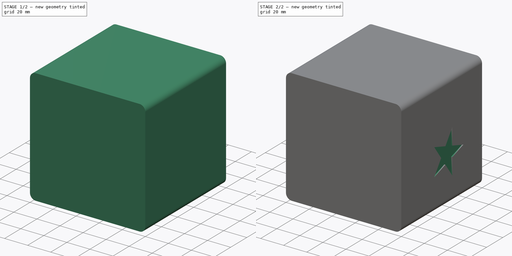
[diagram: build sequence overview — one tinted view per stage of 2, left to right]
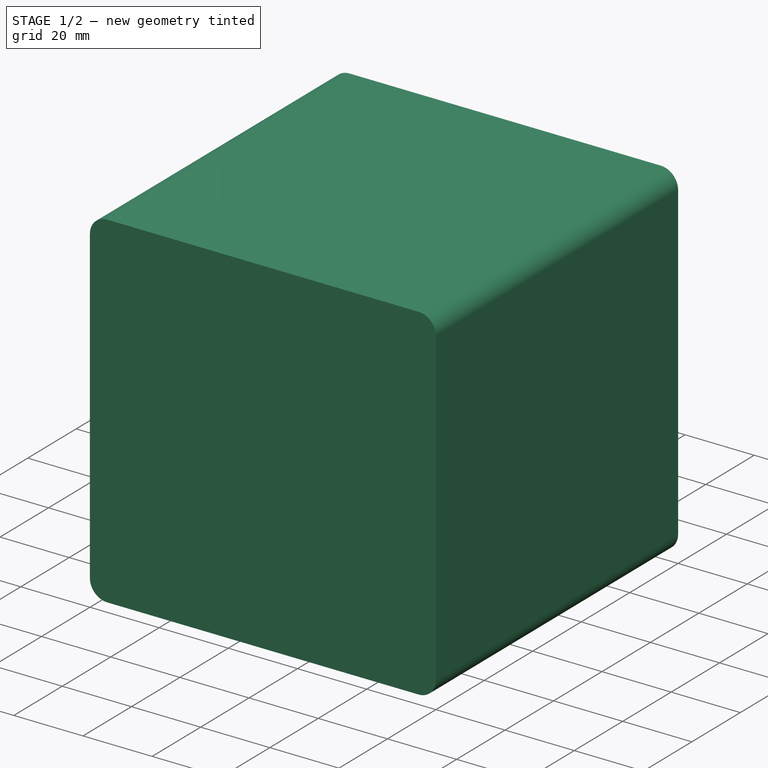
[diagram: stage 1 of 2 — iso view after this stage's code; geometry added in this stage tinted green]
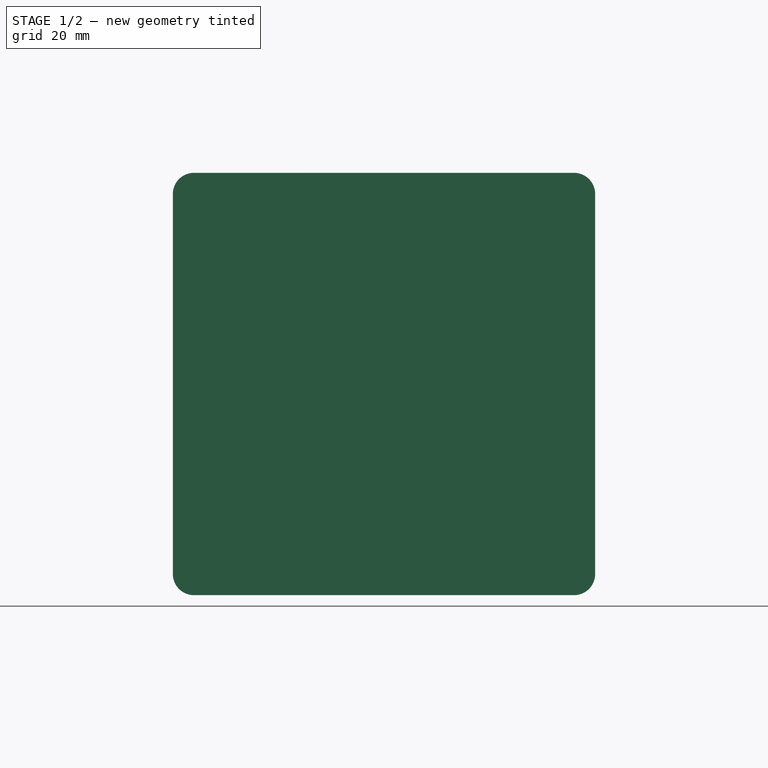
[diagram: stage 1 of 2 — front view after this stage's code; geometry added in this stage tinted green]
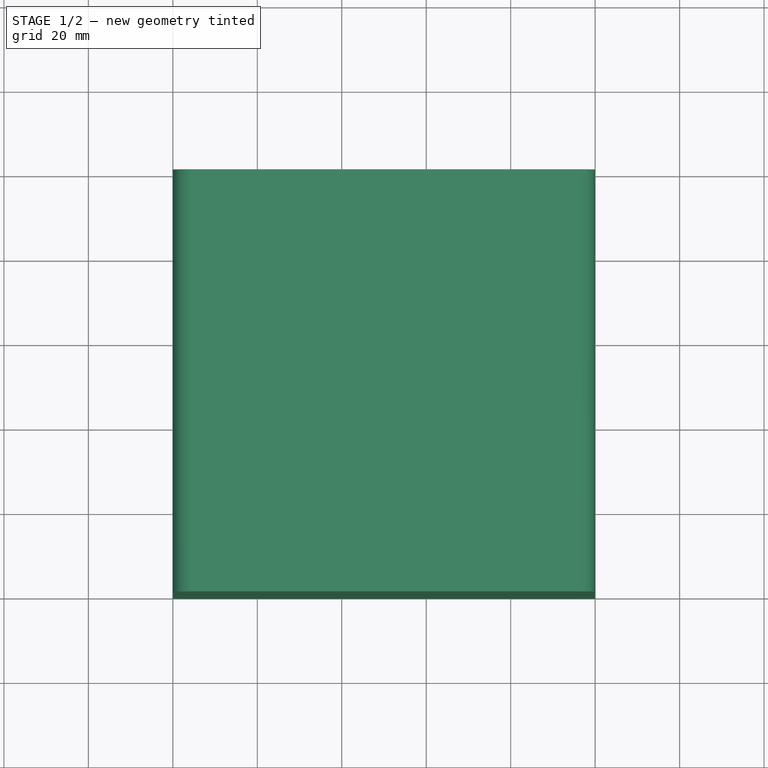
[diagram: stage 1 of 2 — top view after this stage's code; geometry added in this stage tinted green]
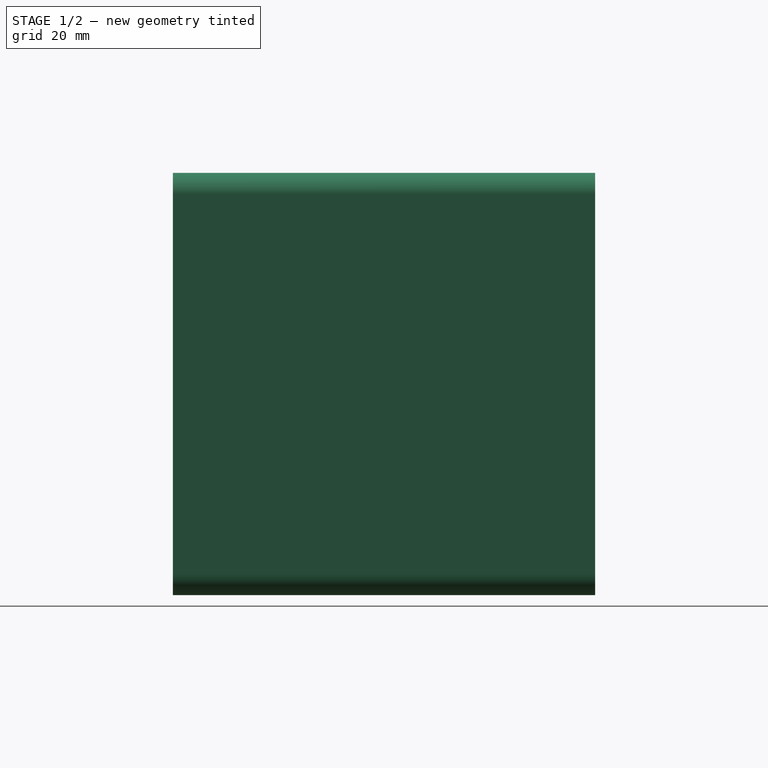
[diagram: stage 1 of 2 — right view after this stage's code; geometry added in this stage tinted green]
FCSTD DOCUMENT  (FreeCAD 0.16R4928 (Git))
Label: cajon-marcela
License: All rights reserved
LicenseURL: http://en.wikipedia.org/wiki/All_rights_reserved
objects: Sketcher::SketchObject×2, PartDesign::Pocket×2, Part::Box×1, PartDesign::Fillet×1
note: 8 computed .brp shape members not serialized (recipe doc carries the construction recipe); baked Part::Feature solids carry a one-line shape summary decoded from their .brp

FEATURE [Part::Box] Box  label="Cubo"
  Height = 100
  Length = 100
  Width = 100
FEATURE [PartDesign::Fillet] Fillet
  Base = -> Box [Edge6,Edge2,Edge8,Edge4]
  Radius = 5
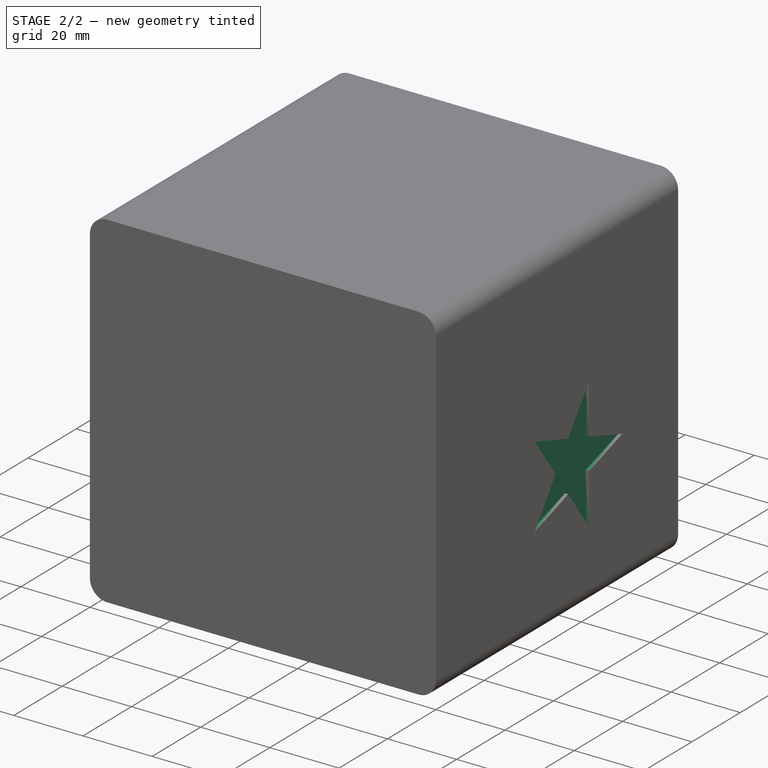
[diagram: stage 2 of 2 — iso view after this stage's code; geometry added in this stage tinted green]
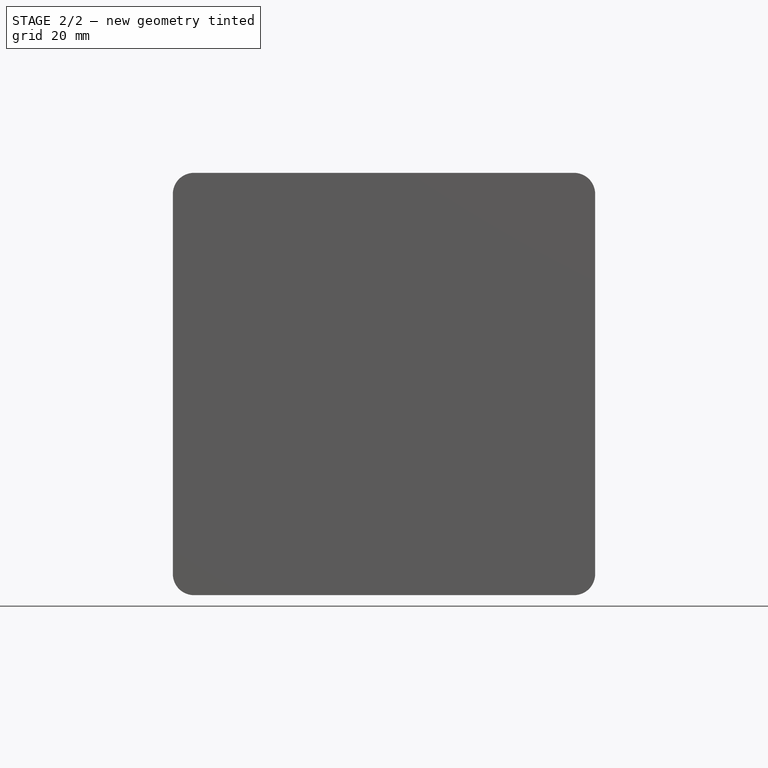
[diagram: stage 2 of 2 — front view after this stage's code; geometry added in this stage tinted green]
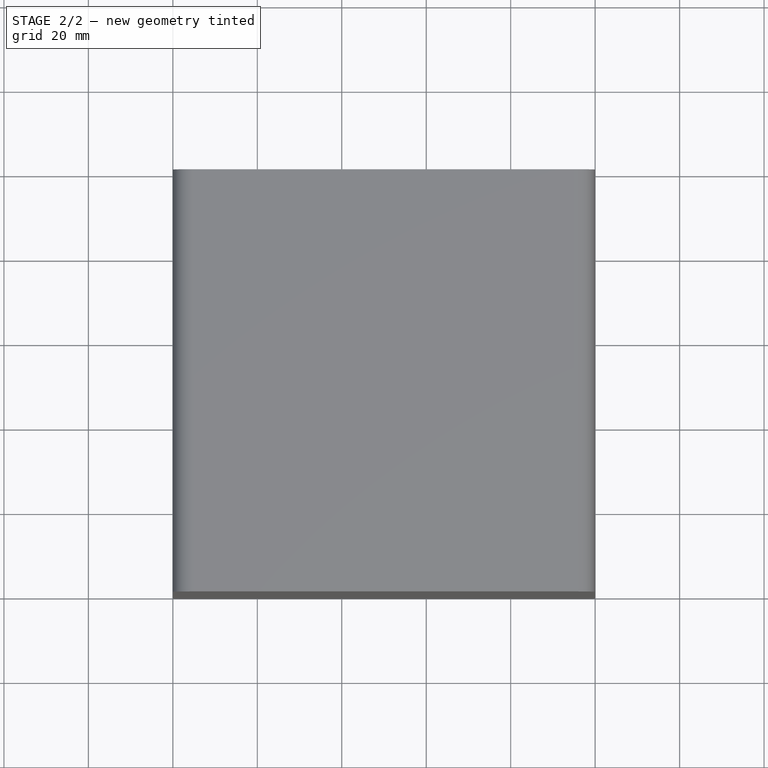
[diagram: stage 2 of 2 — top view after this stage's code; geometry added in this stage tinted green]
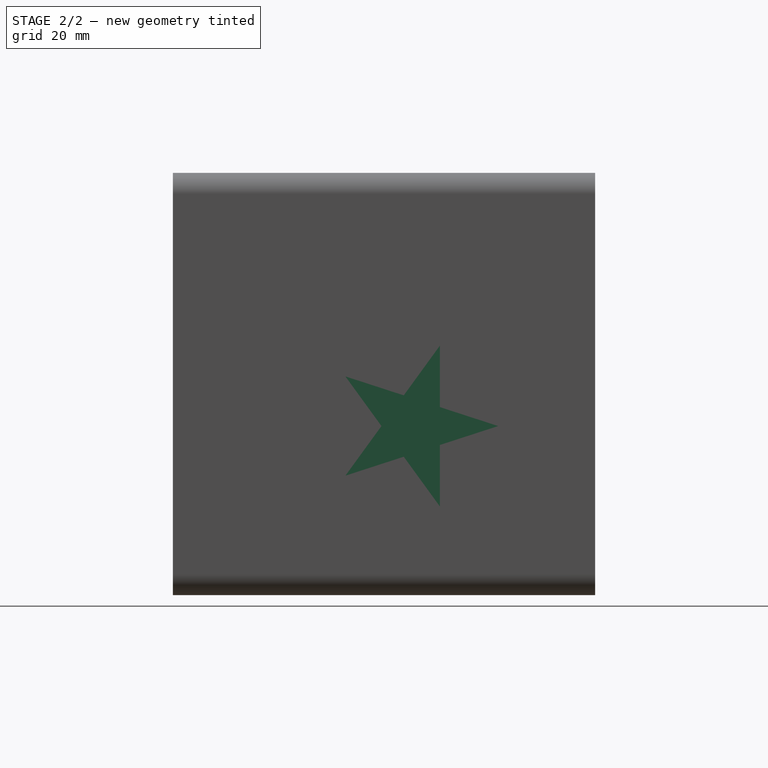
[diagram: stage 2 of 2 — right view after this stage's code; geometry added in this stage tinted green]
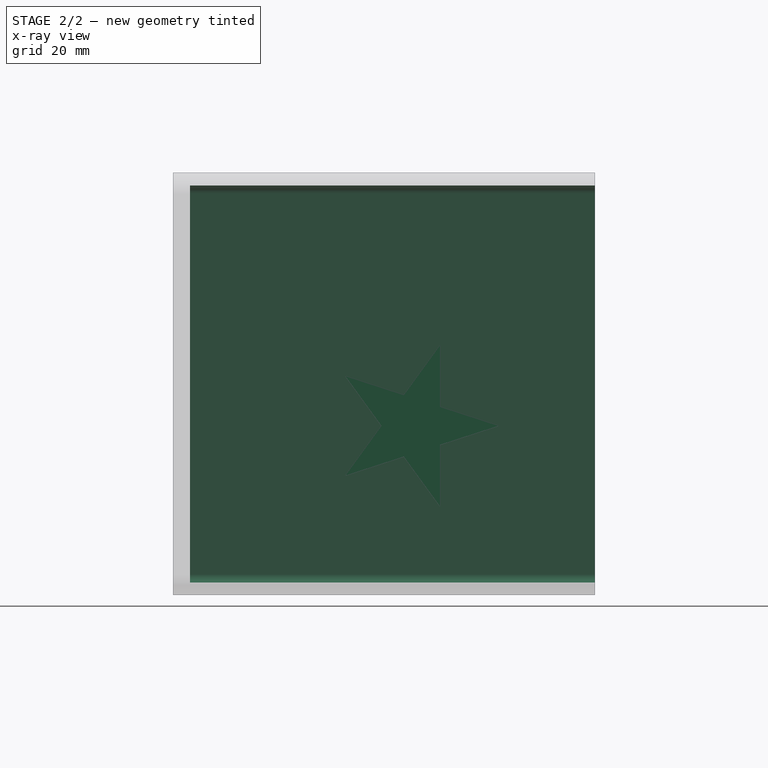
[diagram: stage 2 of 2 — x-ray composite at the right view; earlier geometry ghosted, this stage's added geometry solid]
FEATURE [Sketcher::SketchObject] Sketch
  Placement = pos=(100,0,0) rot=(0.57735,0.57735,0.57735;2.0944rad)
  Support = -> Fillet [Face8]
  sketch-geometry (17):
    g0: Circle [constr] CenterX=57.0392 CenterY=40.0446 CenterZ=0 NormalX=0 NormalY=0 NormalZ=1 Radius=20
    g1: LineSegment [constr] StartX=54.6785 StartY=32.7791 StartZ=0 EndX=63.2195 EndY=35.5543 EndZ=0
    g2: LineSegment [constr] StartX=63.2195 StartY=35.5543 StartZ=0 EndX=63.2195 EndY=44.5348 EndZ=0
    g3: LineSegment [constr] StartX=63.2195 StartY=44.5348 StartZ=0 EndX=54.6785 EndY=47.31 EndZ=0
    g4: LineSegment [constr] StartX=54.6785 StartY=47.31 StartZ=0 EndX=49.3998 EndY=40.0446 EndZ=0
    g5: LineSegment [constr] StartX=49.3998 StartY=40.0446 StartZ=0 EndX=54.6785 EndY=32.7791 EndZ=0
    g6: Circle [constr] CenterX=57.0392 CenterY=40.0446 CenterZ=0 NormalX=0 NormalY=0 NormalZ=1 Radius=7.63932
    g7: LineSegment StartX=63.2195 StartY=35.5543 StartZ=0 EndX=63.2195 EndY=21.0234 EndZ=0
    g8: LineSegment StartX=63.2195 StartY=21.0234 StartZ=0 EndX=54.6785 EndY=32.7791 EndZ=0
    g9: LineSegment StartX=54.6785 StartY=32.7791 StartZ=0 EndX=40.8588 EndY=28.2889 EndZ=0
    g10: LineSegment StartX=40.8588 StartY=28.2889 StartZ=0 EndX=49.3998 EndY=40.0446 EndZ=0
    g11: LineSegment StartX=49.3998 StartY=40.0446 StartZ=0 EndX=40.8588 EndY=51.8003 EndZ=0
    g12: LineSegment StartX=40.8588 StartY=51.8003 StartZ=0 EndX=54.6785 EndY=47.31 EndZ=0
    g13: LineSegment StartX=54.6785 StartY=47.31 StartZ=0 EndX=63.2195 EndY=59.0657 EndZ=0
    g14: LineSegment StartX=63.2195 StartY=59.0657 StartZ=0 EndX=63.2195 EndY=44.5348 EndZ=0
    g15: LineSegment StartX=63.2195 StartY=44.5348 StartZ=0 EndX=77.0392 EndY=40.0446 EndZ=0
    g16: LineSegment StartX=77.0392 StartY=40.0446 StartZ=0 EndX=63.2195 EndY=35.5543 EndZ=0
  constraints (41):
    c: Coincident(g1,g2)
    c: Coincident(g2,g3)
    c: Coincident(g3,g4)
    c: Coincident(g4,g5)
    c: Coincident(g5,g1)
    c: Equal(g1, g2-g5) x4
    c: PointOnObject(g1,g6)
    c: PointOnObject(g2,g6)
    c: PointOnObject(g3,g6)
    c: PointOnObject(g4,g6)
    c: PointOnObject(g5,g6)
    c: Coincident(g3,g0)
    c: Coincident(g0,g6)
    c: Coincident(g1,g7)
    c: PointOnObject(g7,g0)
    c: Coincident(g7,g8)
    c: Coincident(g8,g1)
    c: Coincident(g8,g9)
    c: PointOnObject(g9,g0)
    c: Coincident(g9,g10)
    c: Coincident(g10,g4)
    c: Coincident(g10,g11)
    c: PointOnObject(g11,g0)
    c: Coincident(g11,g12)
    c: Coincident(g12,g3)
    c: Coincident(g12,g13)
    c: PointOnObject(g13,g0)
    c: Coincident(g13,g14)
    c: Coincident(g14,g2)
    c: Coincident(g14,g15)
    c: PointOnObject(g15,g0)
    c: Coincident(g15,g16)
    c: Coincident(g16,g7)
    c: Parallel(g9,g1)
    c: Parallel(g1,g16)
    c: Parallel(g8,g5)
    c: Parallel(g5,g11)
    c: Parallel(g7,g2)
    c: Parallel(g2,g14)
    c: Radius(g0) = 20
    c: Vertical(g2)
FEATURE [PartDesign::Pocket] Pocket
  Length = 1
  Sketch = -> Sketch
  Type = 0
FEATURE [Sketcher::SketchObject] Sketch001
  ExternalGeometry = -> [Pocket]
  Placement = pos=(0,100,0) rot=(0,0.707107,0.707107;3.14159rad)
  Support = -> Pocket [Face5]
  sketch-geometry (16):
    g0: LineSegment StartX=-95.0359 StartY=3 StartZ=0 EndX=-4.96415 EndY=3 EndZ=0
    g1: LineSegment StartX=-3 StartY=95.0359 StartZ=0 EndX=-3 EndY=4.96415 EndZ=0
    g2: LineSegment StartX=-4.96415 StartY=97 StartZ=0 EndX=-95.0359 EndY=97 EndZ=0
    g3: LineSegment StartX=-97 StartY=95.0359 StartZ=0 EndX=-97 EndY=4.96415 EndZ=0
    g4: ArcOfCircle CenterX=-4.96415 CenterY=4.96415 CenterZ=0 NormalX=0 NormalY=0 NormalZ=1 Radius=1.96415 StartAngle=4.71239 EndAngle=6.28319
    g5: ArcOfCircle CenterX=-95.0359 CenterY=4.96415 CenterZ=0 NormalX=0 NormalY=0 NormalZ=1 Radius=1.96415 StartAngle=3.14159 EndAngle=4.71239
    g6: ArcOfCircle CenterX=-95.0359 CenterY=95.0359 CenterZ=0 NormalX=0 NormalY=0 NormalZ=1 Radius=1.96415 StartAngle=1.5708 EndAngle=3.14159
    g7: ArcOfCircle CenterX=-4.96415 CenterY=95.0359 CenterZ=0 NormalX=0 NormalY=0 NormalZ=1 Radius=1.96415 StartAngle=1.47e-09 EndAngle=1.5708
    g8: LineSegment [constr] StartX=-95.0359 StartY=95.0359 StartZ=0 EndX=-4.96415 EndY=95.0359 EndZ=0
    g9: LineSegment [constr] StartX=-4.96415 StartY=95.0359 StartZ=0 EndX=-4.96415 EndY=4.96415 EndZ=0
    g10: LineSegment [constr] StartX=-4.96415 StartY=4.96415 StartZ=0 EndX=-95.0359 EndY=4.96415 EndZ=0
    g11: LineSegment [constr] StartX=-95.0359 StartY=4.96415 StartZ=0 EndX=-95.0359 EndY=95.0359 EndZ=0
    g12: LineSegment [constr] StartX=-4.96415 StartY=97 StartZ=0 EndX=-4.96415 EndY=3 EndZ=0
    g13: LineSegment [constr] StartX=-95.0359 StartY=97 StartZ=0 EndX=-95.0359 EndY=3 EndZ=0
    g14: LineSegment [constr] StartX=-97 StartY=95.0359 StartZ=0 EndX=-3 EndY=95.0359 EndZ=0
    g15: LineSegment [constr] StartX=-97 StartY=4.96415 StartZ=0 EndX=-3 EndY=4.96415 EndZ=0
  constraints (43):
    c: Horizontal(g0)
    c: Vertical(g1)
    c: Horizontal(g2)
    c: Vertical(g3)
    c: Coincident(g4,g1)
    c: Coincident(g4,g0)
    c: Coincident(g5,g0)
    c: Coincident(g5,g3)
    c: Coincident(g6,g2)
    c: Coincident(g6,g3)
    c: Coincident(g7,g2)
    c: Coincident(g7,g1)
    c: Coincident(g8,g9)
    c: Coincident(g9,g10)
    c: Coincident(g10,g11)
    c: Coincident(g11,g8)
    c: Horizontal(g8)
    c: Horizontal(g10)
    c: Vertical(g9)
    c: Vertical(g11)
    c: Coincident(g8,g6)
    c: Coincident(g9,g4)
    c: Coincident(g7,g8)
    c: Coincident(g5,g10)
    c: Equal(g1,g3)
    c: Coincident(g12,g2)
    c: Coincident(g12,g0)
    c: Vertical(g12)
    c: PointOnObject(g7,g12)
    c: Coincident(g13,g2)
    c: Coincident(g13,g0)
    c: Vertical(g13)
    c: PointOnObject(g6,g13)
    c: Coincident(g14,g3)
    c: Coincident(g14,g1)
    c: PointOnObject(g6,g14)
    c: Coincident(g15,g3)
    c: Coincident(g15,g1)
    c: PointOnObject(g4,g15)
    c: Distance(g1,g-5) = 3
    c: Distance(g0,g-3) = 3
    c: Distance(g2,g-9) = 3
    c: Distance(g3,g-6) = 3
FEATURE [PartDesign::Pocket] Pocket001
  Length = 96
  Sketch = -> Sketch001
  Type = 0
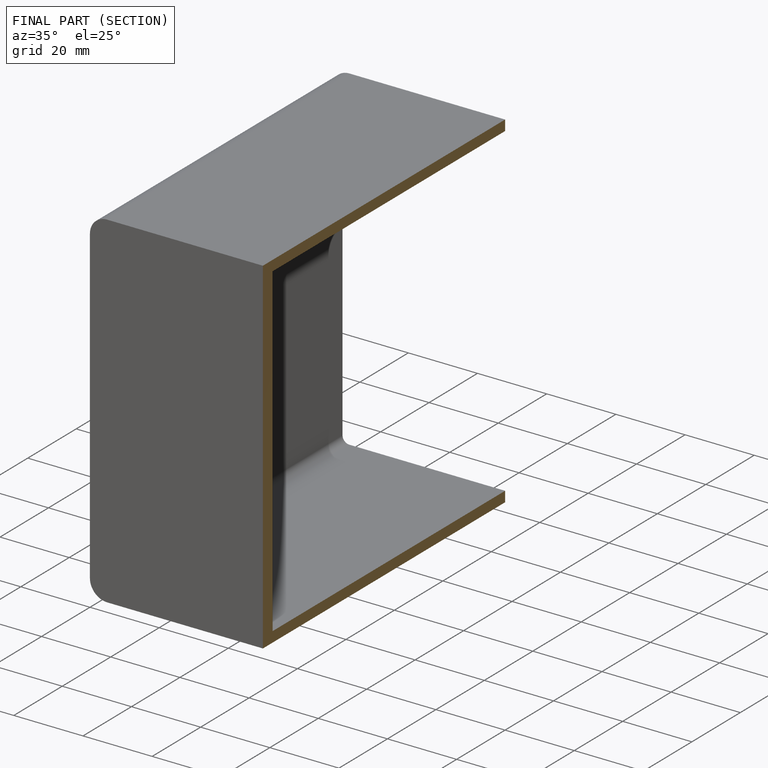
[diagram: finished part — half-section view (interior)]
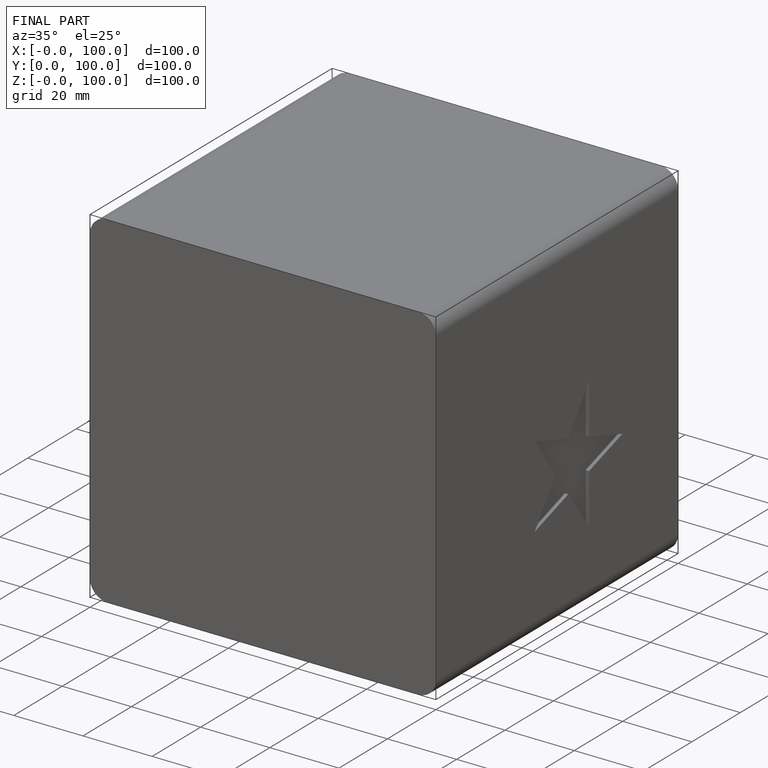
[diagram: finished part — iso view with bounding-box wireframe]
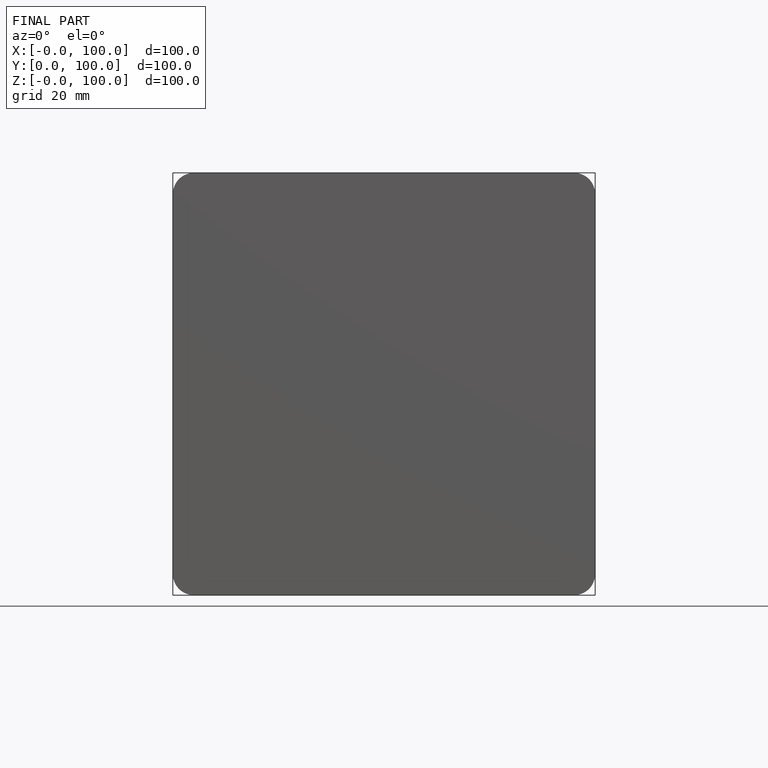
[diagram: finished part — front view with bounding-box wireframe]
